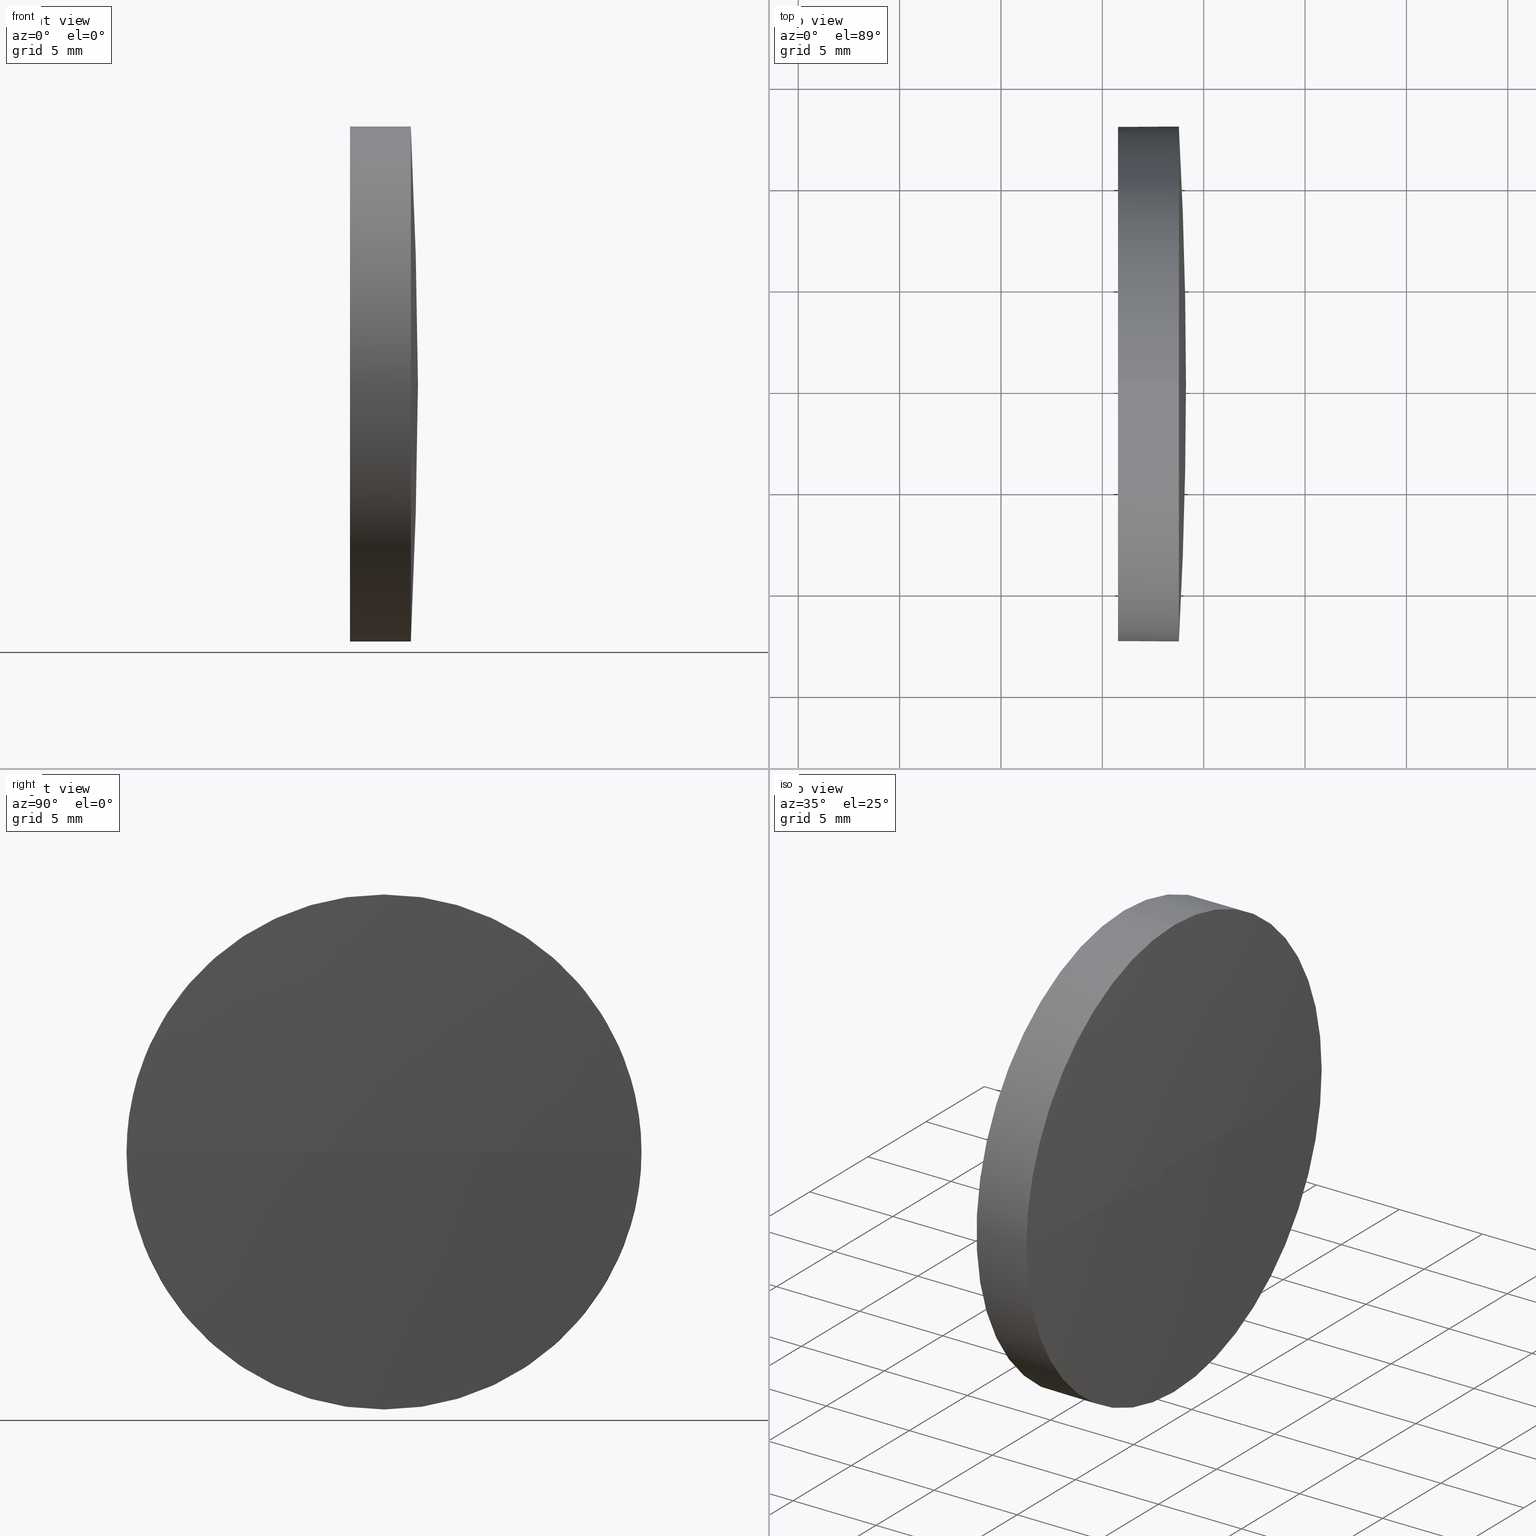
[diagram: canonical four-view strip — front | top / right | iso, engineering-drawing reading convention]
A machine part, canonical four-view strip (front | top / right | iso — engineering-drawing reading convention). The complete STEP part file that produces these views, byte-faithful:
ISO-10303-21;
HEADER;
FILE_DESCRIPTION (( 'STEP AP214' ),
    '1' );
FILE_NAME ('400021.STEP',
    '2019-08-21T06:09:51',
    ( '' ),
    ( '' ),
    'SwSTEP 2.0',
    'SolidWorks 2016',
    '' );
FILE_SCHEMA (( 'AUTOMOTIVE_DESIGN' ));
ENDSEC;

DATA;
#1 = ORIENTED_EDGE ( 'NONE', *, *, #155, .T. ) ;
#2 = DIRECTION ( 'NONE',  ( 0.0000000000000000000, -1.000000000000000000, 0.0000000000000000000 ) ) ;
#3 = CARTESIAN_POINT ( 'NONE',  ( 118.7739426674340100, 65.23355492641219700, 0.0000000000000000000 ) ) ;
#4 = CIRCLE ( 'NONE', #90, 12.70000000000000300 ) ;
#5 = DIRECTION ( 'NONE',  ( -1.000000000000000000, -0.0000000000000000000, -0.0000000000000000000 ) ) ;
#6 = VERTEX_POINT ( 'NONE', #71 ) ;
#7 = AXIS2_PLACEMENT_3D ( 'NONE', #174, #162, #31 ) ;
#8 = EDGE_CURVE ( 'NONE', #111, #83, #105, .T. ) ;
#9 = FACE_OUTER_BOUND ( 'NONE', #12, .T. ) ;
#10 = FACE_OUTER_BOUND ( 'NONE', #96, .T. ) ;
#11 = LINE ( 'NONE', #178, #101 ) ;
#12 = EDGE_LOOP ( 'NONE', ( #16, #179, #99, #58, #182 ) ) ;
#13 = PLANE ( 'NONE',  #126 ) ;
#14 = DIRECTION ( 'NONE',  ( 0.0000000000000000000, 0.0000000000000000000, 1.000000000000000000 ) ) ;
#15 = CARTESIAN_POINT ( 'NONE',  ( -110.3743935691618700, 65.23355492641245200, 0.0000000000000000000 ) ) ;
#16 = ORIENTED_EDGE ( 'NONE', *, *, #20, .F. ) ;
#17 = FILL_AREA_STYLE ('',( #121 ) ) ;
#18 = CIRCLE ( 'NONE', #7, 229.5000000000000000 ) ;
#19 = CARTESIAN_POINT ( 'NONE',  ( 0.0000000000000000000, 0.0000000000000000000, 0.0000000000000000000 ) ) ;
#20 = EDGE_CURVE ( 'NONE', #111, #54, #86, .T. ) ;
#21 = CARTESIAN_POINT ( 'NONE',  ( 115.7736064308381300, 65.23355492641219700, 0.0000000000000000000 ) ) ;
#22 = DIRECTION ( 'NONE',  ( -1.000000000000000000, -0.0000000000000000000, -0.0000000000000000000 ) ) ;
#23 = AXIS2_PLACEMENT_3D ( 'NONE', #30, #22, #130 ) ;
#24 = APPLICATION_CONTEXT ( 'automotive_design' ) ;
#25 =( LENGTH_UNIT ( ) NAMED_UNIT ( * ) SI_UNIT ( .MILLI., .METRE. ) );
#26 =( NAMED_UNIT ( * ) PLANE_ANGLE_UNIT ( ) SI_UNIT ( $, .RADIAN. ) );
#27 = ORIENTED_EDGE ( 'NONE', *, *, #112, .F. ) ;
#28 = EDGE_CURVE ( 'NONE', #76, #54, #32, .T. ) ;
#29 = CARTESIAN_POINT ( 'NONE',  ( 115.7736064308381300, 65.23355492641219700, 0.0000000000000000000 ) ) ;
#30 = CARTESIAN_POINT ( 'NONE',  ( 118.7739426674340100, 65.23355492641219700, 0.0000000000000000000 ) ) ;
#31 = DIRECTION ( 'NONE',  ( 0.0000000000000000000, -1.000000000000000000, -1.224646799147353200E-016 ) ) ;
#32 = CIRCLE ( 'NONE', #49, 12.70000000000000300 ) ;
#33 = ADVANCED_FACE ( 'NONE', ( #120 ), #13, .F. ) ;
#34 = EDGE_LOOP ( 'NONE', ( #27, #1, #132, #102 ) ) ;
#35 = SURFACE_STYLE_USAGE ( .BOTH. , #66 ) ;
#36 = APPLICATION_PROTOCOL_DEFINITION ( 'draft international standard', 'automotive_design', 1998, #169 ) ;
#37 = AXIS2_PLACEMENT_3D ( 'NONE', #172, #128, #14 ) ;
#38 = CYLINDRICAL_SURFACE ( 'NONE', #45, 12.70000000000000300 ) ;
#39 = PRESENTATION_STYLE_ASSIGNMENT (( #47 ) ) ;
#40 = AXIS2_PLACEMENT_3D ( 'NONE', #51, #175, #48 ) ;
#41 = CIRCLE ( 'NONE', #79, 12.70000000000000300 ) ;
#42 = ORIENTED_EDGE ( 'NONE', *, *, #133, .T. ) ;
#43 = DIRECTION ( 'NONE',  ( -1.000000000000000000, -0.0000000000000000000, -0.0000000000000000000 ) ) ;
#44 = CARTESIAN_POINT ( 'NONE',  ( 118.7739426674340300, 77.93355492641221400, 1.555301434917110000E-015 ) ) ;
#45 = AXIS2_PLACEMENT_3D ( 'NONE', #106, #129, #131 ) ;
#46 = CARTESIAN_POINT ( 'NONE',  ( 118.7739426674340100, 65.23355492641219700, 12.70000000000000300 ) ) ;
#47 = SURFACE_STYLE_USAGE ( .BOTH. , #119 ) ;
#48 = DIRECTION ( 'NONE',  ( -1.000000000000000000, 0.0000000000000000000, 0.0000000000000000000 ) ) ;
#49 = AXIS2_PLACEMENT_3D ( 'NONE', #29, #43, #59 ) ;
#50 = VERTEX_POINT ( 'NONE', #44 ) ;
#51 = CARTESIAN_POINT ( 'NONE',  ( -110.3743935691618700, 65.23355492641245200, 0.0000000000000000000 ) ) ;
#52 = SPHERICAL_SURFACE ( 'NONE', #95, 229.5000000000000000 ) ;
#53 = APPLICATION_PROTOCOL_DEFINITION ( 'draft international standard', 'automotive_design', 1998, #24 ) ;
#54 = VERTEX_POINT ( 'NONE', #73 ) ;
#55 = PRESENTATION_LAYER_ASSIGNMENT (  '', '', ( #87 ) ) ;
#56 =( LENGTH_UNIT ( ) NAMED_UNIT ( * ) SI_UNIT ( .MILLI., .METRE. ) );
#57 = AXIS2_PLACEMENT_3D ( 'NONE', #21, #65, #160 ) ;
#58 = ORIENTED_EDGE ( 'NONE', *, *, #183, .T. ) ;
#59 = DIRECTION ( 'NONE',  ( 0.0000000000000000000, 0.0000000000000000000, 1.000000000000000000 ) ) ;
#60 =( NAMED_UNIT ( * ) SI_UNIT ( $, .STERADIAN. ) SOLID_ANGLE_UNIT ( ) );
#61 = DIRECTION ( 'NONE',  ( 0.0000000000000000000, 0.0000000000000000000, 1.000000000000000000 ) ) ;
#62 =( LENGTH_UNIT ( ) NAMED_UNIT ( * ) SI_UNIT ( .MILLI., .METRE. ) );
#63 =( GEOMETRIC_REPRESENTATION_CONTEXT ( 3 ) GLOBAL_UNCERTAINTY_ASSIGNED_CONTEXT ( ( #64 ) ) GLOBAL_UNIT_ASSIGNED_CONTEXT ( ( #62, #82, #60 ) ) REPRESENTATION_CONTEXT ( 'NONE', 'WORKASPACE' ) );
#64 = UNCERTAINTY_MEASURE_WITH_UNIT (LENGTH_MEASURE( 1.000000000000000100E-005 ), #62, 'distance_accuracy_value', 'NONE');
#65 = DIRECTION ( 'NONE',  ( -1.000000000000000000, -0.0000000000000000000, -0.0000000000000000000 ) ) ;
#66 = SURFACE_SIDE_STYLE ('',( #118 ) ) ;
#67 = FILL_AREA_STYLE_COLOUR ( '', #154 ) ;
#68 = PRODUCT_DEFINITION_SHAPE ( 'NONE', 'NONE',  #177 ) ;
#69 = ORIENTED_EDGE ( 'NONE', *, *, #28, .F. ) ;
#70 = VECTOR ( 'NONE', #139, 1000.000000000000000 ) ;
#71 = CARTESIAN_POINT ( 'NONE',  ( 119.1256064308381300, 65.23355492641243800, 0.0000000000000000000 ) ) ;
#72 = CLOSED_SHELL ( 'NONE', ( #148, #98, #168, #163, #33 ) ) ;
#73 = CARTESIAN_POINT ( 'NONE',  ( 115.7736064308381300, 65.23355492641219700, -12.70000000000000300 ) ) ;
#74 = DIRECTION ( 'NONE',  ( 0.0000000000000000000, 0.0000000000000000000, 1.000000000000000000 ) ) ;
#75 = DIRECTION ( 'NONE',  ( 0.0000000000000000000, 0.0000000000000000000, 1.000000000000000000 ) ) ;
#76 = VERTEX_POINT ( 'NONE', #94 ) ;
#77 = DIRECTION ( 'NONE',  ( 0.0000000000000000000, -1.000000000000000000, 0.0000000000000000000 ) ) ;
#78 = DIRECTION ( 'NONE',  ( 0.0000000000000000000, 0.0000000000000000000, 1.000000000000000000 ) ) ;
#79 = AXIS2_PLACEMENT_3D ( 'NONE', #3, #5, #78 ) ;
#80 = CIRCLE ( 'NONE', #57, 12.70000000000000300 ) ;
#81 = UNCERTAINTY_MEASURE_WITH_UNIT (LENGTH_MEASURE( 1.000000000000000100E-005 ), #25, 'distance_accuracy_value', 'NONE');
#82 =( NAMED_UNIT ( * ) PLANE_ANGLE_UNIT ( ) SI_UNIT ( $, .RADIAN. ) );
#83 = VERTEX_POINT ( 'NONE', #117 ) ;
#84 = DIRECTION ( 'NONE',  ( -1.000000000000000000, -0.0000000000000000000, -0.0000000000000000000 ) ) ;
#85 = DIRECTION ( 'NONE',  ( 0.0000000000000000000, 0.0000000000000000000, 1.000000000000000000 ) ) ;
#86 = LINE ( 'NONE', #104, #70 ) ;
#87 = STYLED_ITEM ( 'NONE', ( #161 ), #89 ) ;
#88 = EDGE_LOOP ( 'NONE', ( #164, #42 ) ) ;
#89 = ADVANCED_BREP_SHAPE_REPRESENTATION ( '400021', ( #153, #186 ), #134 ) ;
#90 = AXIS2_PLACEMENT_3D ( 'NONE', #108, #176, #97 ) ;
#91 =( GEOMETRIC_REPRESENTATION_CONTEXT ( 3 ) GLOBAL_UNCERTAINTY_ASSIGNED_CONTEXT ( ( #81 ) ) GLOBAL_UNIT_ASSIGNED_CONTEXT ( ( #25, #26, #167 ) ) REPRESENTATION_CONTEXT ( 'NONE', 'WORKASPACE' ) );
#92 = ORIENTED_EDGE ( 'NONE', *, *, #103, .T. ) ;
#93 = ORIENTED_EDGE ( 'NONE', *, *, #20, .T. ) ;
#94 = CARTESIAN_POINT ( 'NONE',  ( 115.7736064308381300, 65.23355492641219700, 12.70000000000000300 ) ) ;
#95 = AXIS2_PLACEMENT_3D ( 'NONE', #143, #75, #77 ) ;
#96 = EDGE_LOOP ( 'NONE', ( #109, #123, #152, #127 ) ) ;
#97 = DIRECTION ( 'NONE',  ( 0.0000000000000000000, 0.0000000000000000000, 1.000000000000000000 ) ) ;
#98 = ADVANCED_FACE ( 'NONE', ( #180 ), #156, .T. ) ;
#99 = ORIENTED_EDGE ( 'NONE', *, *, #107, .T. ) ;
#100 = EDGE_CURVE ( 'NONE', #50, #111, #41, .T. ) ;
#101 = VECTOR ( 'NONE', #144, 1000.000000000000000 ) ;
#102 = ORIENTED_EDGE ( 'NONE', *, *, #107, .F. ) ;
#103 = EDGE_CURVE ( 'NONE', #141, #50, #4, .T. ) ;
#104 = CARTESIAN_POINT ( 'NONE',  ( 110.1653732284884500, 65.23355492641219700, -12.70000000000000300 ) ) ;
#105 = CIRCLE ( 'NONE', #37, 12.70000000000000300 ) ;
#106 = CARTESIAN_POINT ( 'NONE',  ( 110.1653732284884500, 65.23355492641219700, 0.0000000000000000000 ) ) ;
#107 = EDGE_CURVE ( 'NONE', #83, #141, #151, .T. ) ;
#108 = CARTESIAN_POINT ( 'NONE',  ( 118.7739426674340100, 65.23355492641219700, 0.0000000000000000000 ) ) ;
#109 = ORIENTED_EDGE ( 'NONE', *, *, #155, .F. ) ;
#110 = PRODUCT_DEFINITION_FORMATION_WITH_SPECIFIED_SOURCE ( '�κ�', '', #138, .NOT_KNOWN. ) ;
#111 = VERTEX_POINT ( 'NONE', #145 ) ;
#112 = EDGE_CURVE ( 'NONE', #6, #83, #140, .T. ) ;
#113 = PRESENTATION_LAYER_ASSIGNMENT (  '', '', ( #147 ) ) ;
#114 = COLOUR_RGB ( '',1.000000000000000000, 1.000000000000000000, 1.000000000000000000 ) ;
#115 = AXIS2_PLACEMENT_3D ( 'NONE', #15, #74, #2 ) ;
#116 = CARTESIAN_POINT ( 'NONE',  ( 115.7736064308381300, 65.23355492641219700, 0.0000000000000000000 ) ) ;
#117 = CARTESIAN_POINT ( 'NONE',  ( 118.7739426674340300, 52.53355492641242800, 0.0000000000000000000 ) ) ;
#118 = SURFACE_STYLE_FILL_AREA ( #149 ) ;
#119 = SURFACE_SIDE_STYLE ('',( #184 ) ) ;
#120 = FACE_OUTER_BOUND ( 'NONE', #88, .T. ) ;
#121 = FILL_AREA_STYLE_COLOUR ( '', #114 ) ;
#122 = PRODUCT_RELATED_PRODUCT_CATEGORY ( 'part', '', ( #138 ) ) ;
#123 = ORIENTED_EDGE ( 'NONE', *, *, #112, .T. ) ;
#124 =( NAMED_UNIT ( * ) PLANE_ANGLE_UNIT ( ) SI_UNIT ( $, .RADIAN. ) );
#125 = SHAPE_DEFINITION_REPRESENTATION ( #68, #89 ) ;
#126 = AXIS2_PLACEMENT_3D ( 'NONE', #116, #173, #158 ) ;
#127 = ORIENTED_EDGE ( 'NONE', *, *, #100, .F. ) ;
#128 = DIRECTION ( 'NONE',  ( -1.000000000000000000, -0.0000000000000000000, -0.0000000000000000000 ) ) ;
#129 = DIRECTION ( 'NONE',  ( -1.000000000000000000, -0.0000000000000000000, -0.0000000000000000000 ) ) ;
#130 = DIRECTION ( 'NONE',  ( 0.0000000000000000000, 0.0000000000000000000, 1.000000000000000000 ) ) ;
#131 = DIRECTION ( 'NONE',  ( 0.0000000000000000000, 0.0000000000000000000, 1.000000000000000000 ) ) ;
#132 = ORIENTED_EDGE ( 'NONE', *, *, #103, .F. ) ;
#133 = EDGE_CURVE ( 'NONE', #54, #76, #80, .T. ) ;
#134 =( GEOMETRIC_REPRESENTATION_CONTEXT ( 3 ) GLOBAL_UNCERTAINTY_ASSIGNED_CONTEXT ( ( #165 ) ) GLOBAL_UNIT_ASSIGNED_CONTEXT ( ( #56, #124, #135 ) ) REPRESENTATION_CONTEXT ( 'NONE', 'WORKASPACE' ) );
#135 =( NAMED_UNIT ( * ) SI_UNIT ( $, .STERADIAN. ) SOLID_ANGLE_UNIT ( ) );
#136 = DIRECTION ( 'NONE',  ( 1.000000000000000000, 0.0000000000000000000, 0.0000000000000000000 ) ) ;
#137 = EDGE_LOOP ( 'NONE', ( #171, #93, #69, #159, #92 ) ) ;
#138 = PRODUCT ( '400021', '400021', '', ( #150 ) ) ;
#139 = DIRECTION ( 'NONE',  ( -1.000000000000000000, -0.0000000000000000000, -0.0000000000000000000 ) ) ;
#140 = CIRCLE ( 'NONE', #40, 229.5000000000000000 ) ;
#141 = VERTEX_POINT ( 'NONE', #46 ) ;
#142 = MECHANICAL_DESIGN_GEOMETRIC_PRESENTATION_REPRESENTATION (  '', ( #87 ), #91 ) ;
#143 = CARTESIAN_POINT ( 'NONE',  ( -110.3743935691618700, 65.23355492641245200, 0.0000000000000000000 ) ) ;
#144 = DIRECTION ( 'NONE',  ( -1.000000000000000000, -0.0000000000000000000, -0.0000000000000000000 ) ) ;
#145 = CARTESIAN_POINT ( 'NONE',  ( 118.7739426674340100, 65.23355492641219700, -12.70000000000000300 ) ) ;
#146 = FACE_OUTER_BOUND ( 'NONE', #137, .T. ) ;
#147 = STYLED_ITEM ( 'NONE', ( #39 ), #153 ) ;
#148 = ADVANCED_FACE ( 'NONE', ( #146 ), #38, .T. ) ;
#149 = FILL_AREA_STYLE ('',( #67 ) ) ;
#150 = PRODUCT_CONTEXT ( 'NONE', #169, 'mechanical' ) ;
#151 = CIRCLE ( 'NONE', #23, 12.70000000000000300 ) ;
#152 = ORIENTED_EDGE ( 'NONE', *, *, #8, .F. ) ;
#153 = MANIFOLD_SOLID_BREP ( '��ת1', #72 ) ;
#154 = COLOUR_RGB ( '',1.000000000000000000, 1.000000000000000000, 1.000000000000000000 ) ;
#155 = EDGE_CURVE ( 'NONE', #6, #50, #18, .T. ) ;
#156 = SPHERICAL_SURFACE ( 'NONE', #115, 229.5000000000000000 ) ;
#157 = MECHANICAL_DESIGN_GEOMETRIC_PRESENTATION_REPRESENTATION (  '', ( #147 ), #63 ) ;
#158 = DIRECTION ( 'NONE',  ( 0.0000000000000000000, 0.0000000000000000000, -1.000000000000000000 ) ) ;
#159 = ORIENTED_EDGE ( 'NONE', *, *, #183, .F. ) ;
#160 = DIRECTION ( 'NONE',  ( 0.0000000000000000000, 0.0000000000000000000, 1.000000000000000000 ) ) ;
#161 = PRESENTATION_STYLE_ASSIGNMENT (( #35 ) ) ;
#162 = DIRECTION ( 'NONE',  ( 0.0000000000000000000, -1.224646799147353200E-016, 1.000000000000000000 ) ) ;
#163 = ADVANCED_FACE ( 'NONE', ( #9 ), #185, .T. ) ;
#164 = ORIENTED_EDGE ( 'NONE', *, *, #28, .T. ) ;
#165 = UNCERTAINTY_MEASURE_WITH_UNIT (LENGTH_MEASURE( 1.000000000000000100E-005 ), #56, 'distance_accuracy_value', 'NONE');
#166 = CARTESIAN_POINT ( 'NONE',  ( 110.1653732284884500, 65.23355492641219700, 0.0000000000000000000 ) ) ;
#167 =( NAMED_UNIT ( * ) SI_UNIT ( $, .STERADIAN. ) SOLID_ANGLE_UNIT ( ) );
#168 = ADVANCED_FACE ( 'NONE', ( #10 ), #52, .T. ) ;
#169 = APPLICATION_CONTEXT ( 'automotive_design' ) ;
#170 = AXIS2_PLACEMENT_3D ( 'NONE', #166, #84, #61 ) ;
#171 = ORIENTED_EDGE ( 'NONE', *, *, #100, .T. ) ;
#172 = CARTESIAN_POINT ( 'NONE',  ( 118.7739426674340100, 65.23355492641219700, 0.0000000000000000000 ) ) ;
#173 = DIRECTION ( 'NONE',  ( 1.000000000000000000, 0.0000000000000000000, 0.0000000000000000000 ) ) ;
#174 = CARTESIAN_POINT ( 'NONE',  ( -110.3743935691618700, 65.23355492641245200, 0.0000000000000000000 ) ) ;
#175 = DIRECTION ( 'NONE',  ( 0.0000000000000000000, 0.0000000000000000000, -1.000000000000000000 ) ) ;
#176 = DIRECTION ( 'NONE',  ( -1.000000000000000000, -0.0000000000000000000, -0.0000000000000000000 ) ) ;
#177 = PRODUCT_DEFINITION ( 'δ֪', '', #110, #181 ) ;
#178 = CARTESIAN_POINT ( 'NONE',  ( 110.1653732284884500, 65.23355492641219700, 12.70000000000000300 ) ) ;
#179 = ORIENTED_EDGE ( 'NONE', *, *, #8, .T. ) ;
#180 = FACE_OUTER_BOUND ( 'NONE', #34, .T. ) ;
#181 = PRODUCT_DEFINITION_CONTEXT ( 'detailed design', #24, 'design' ) ;
#182 = ORIENTED_EDGE ( 'NONE', *, *, #133, .F. ) ;
#183 = EDGE_CURVE ( 'NONE', #141, #76, #11, .T. ) ;
#184 = SURFACE_STYLE_FILL_AREA ( #17 ) ;
#185 = CYLINDRICAL_SURFACE ( 'NONE', #170, 12.70000000000000300 ) ;
#186 = AXIS2_PLACEMENT_3D ( 'NONE', #19, #85, #136 ) ;
ENDSEC;
END-ISO-10303-21;
